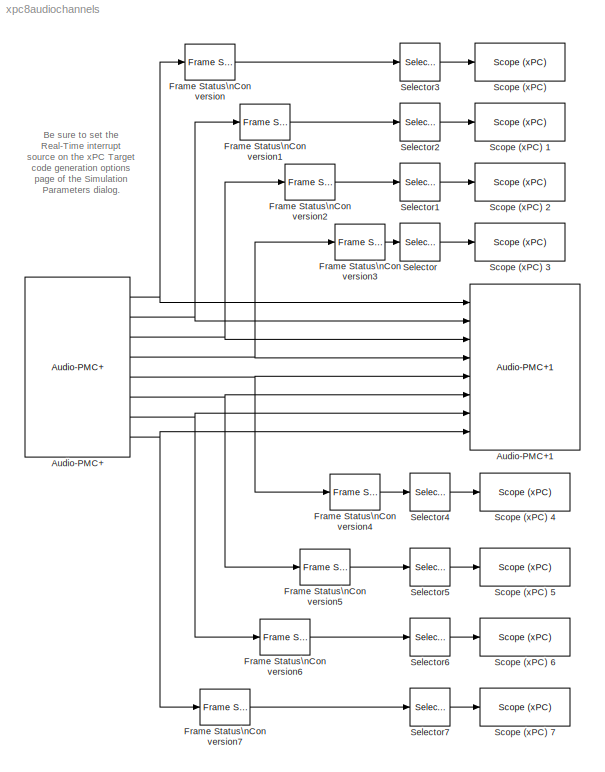
MODEL xpc8audiochannels
KIND model
BLOCK [Reference] Audio-PMC+  REF=xpclib/Audio/Bittware/Audio-PMC+
  Ports = [0, 8]
  SourceBlock = xpclib/Audio/Bittware/Audio-PMC+
  SourceType = bwaudpmc-ain
  channel = [1 2 3 4 5 6 7 8]
  convert = +-1.000
  framesize = 64
  samplerate = 48000
  sampletime = -1
  slot = -1
BLOCK [Reference] Audio-PMC+1  REF=xpclib/Audio/Bittware/Audio-PMC+1
  Ports = [8]
  SourceBlock = xpclib/Audio/Bittware/Audio-PMC+1
  SourceType = bwaudpmc-aout
  channel = [1 2 3 4 5 6 7 8]
  framesize = 64
  samplerate = 48000
  sampletime = -1
  slot = -1
BLOCK [Reference] Frame Status\nConversion  REF=dspsigattribs/Frame Status\nConversion
  Ports = [1, 1]
  ShowPortLabels = off
  SourceBlock = dspsigattribs/Frame Status\nConversion
  SourceType = Frame Status Conversion
  growRefPort = off
  outframe = Sample-based
BLOCK [Reference] Frame Status\nConversion1  REF=dspsigattribs/Frame Status\nConversion
  Ports = [1, 1]
  ShowPortLabels = off
  SourceBlock = dspsigattribs/Frame Status\nConversion
  SourceType = Frame Status Conversion
  growRefPort = off
  outframe = Sample-based
BLOCK [Reference] Frame Status\nConversion2  REF=dspsigattribs/Frame Status\nConversion
  Ports = [1, 1]
  ShowPortLabels = off
  SourceBlock = dspsigattribs/Frame Status\nConversion
  SourceType = Frame Status Conversion
  growRefPort = off
  outframe = Sample-based
BLOCK [Reference] Frame Status\nConversion3  REF=dspsigattribs/Frame Status\nConversion
  Ports = [1, 1]
  ShowPortLabels = off
  SourceBlock = dspsigattribs/Frame Status\nConversion
  SourceType = Frame Status Conversion
  growRefPort = off
  outframe = Sample-based
BLOCK [Reference] Frame Status\nConversion4  REF=dspsigattribs/Frame Status\nConversion
  Ports = [1, 1]
  ShowPortLabels = off
  SourceBlock = dspsigattribs/Frame Status\nConversion
  SourceType = Frame Status Conversion
  growRefPort = off
  outframe = Sample-based
BLOCK [Reference] Frame Status\nConversion5  REF=dspsigattribs/Frame Status\nConversion
  Ports = [1, 1]
  ShowPortLabels = off
  SourceBlock = dspsigattribs/Frame Status\nConversion
  SourceType = Frame Status Conversion
  growRefPort = off
  outframe = Sample-based
BLOCK [Reference] Frame Status\nConversion6  REF=dspsigattribs/Frame Status\nConversion
  Ports = [1, 1]
  ShowPortLabels = off
  SourceBlock = dspsigattribs/Frame Status\nConversion
  SourceType = Frame Status Conversion
  growRefPort = off
  outframe = Sample-based
BLOCK [Reference] Frame Status\nConversion7  REF=dspsigattribs/Frame Status\nConversion
  Ports = [1, 1]
  ShowPortLabels = off
  SourceBlock = dspsigattribs/Frame Status\nConversion
  SourceType = Frame Status Conversion
  growRefPort = off
  outframe = Sample-based
BLOCK [Reference] Scope (xPC)   REF=xpclib/Misc./Scope (xPC) 
  Ports = [1]
  ShowPortLabels = on
  SourceBlock = xpclib/Misc./Scope (xPC)
  SourceType = xpcscopeblock
  autorestart = off
  autostart = on
  filename = data.dat
  formatstr = '%15.6f'
  grid = on
  interleave = 1
  mode = Lazy
  noprepostsamples = 0
  nosamples = 500
  scopeno = 1
  scopetype = Target
  triggerlevel = 0.0
  triggermode = Signal triggering
  triggersample = 0
  triggerscope = 1
  triggersignal = 1
  triggerslope = Rising
  viewmode = Graphical redraw
  writesize = 512
  ylimits = [0,0]
BLOCK [Reference] Scope (xPC) 1  REF=xpclib/Misc./Scope (xPC) 
  Ports = [1]
  ShowPortLabels = on
  SourceBlock = xpclib/Misc./Scope (xPC)
  SourceType = xpcscopeblock
  autorestart = off
  autostart = on
  filename = data.dat
  formatstr = '%15.6f'
  grid = on
  interleave = 1
  mode = Lazy
  noprepostsamples = 0
  nosamples = 500
  scopeno = 2
  scopetype = Target
  triggerlevel = 0.0
  triggermode = Signal triggering
  triggersample = 0
  triggerscope = 1
  triggersignal = 1
  triggerslope = Rising
  viewmode = Graphical redraw
  writesize = 512
  ylimits = [0,0]
BLOCK [Reference] Scope (xPC) 2  REF=xpclib/Misc./Scope (xPC) 
  Ports = [1]
  ShowPortLabels = on
  SourceBlock = xpclib/Misc./Scope (xPC)
  SourceType = xpcscopeblock
  autorestart = off
  autostart = on
  filename = data.dat
  formatstr = '%15.6f'
  grid = on
  interleave = 1
  mode = Lazy
  noprepostsamples = 0
  nosamples = 500
  scopeno = 3
  scopetype = Target
  triggerlevel = 0.0
  triggermode = Signal triggering
  triggersample = 0
  triggerscope = 1
  triggersignal = 1
  triggerslope = Rising
  viewmode = Graphical redraw
  writesize = 512
  ylimits = [0,0]
BLOCK [Reference] Scope (xPC) 3  REF=xpclib/Misc./Scope (xPC) 
  Ports = [1]
  ShowPortLabels = on
  SourceBlock = xpclib/Misc./Scope (xPC)
  SourceType = xpcscopeblock
  autorestart = off
  autostart = on
  filename = data.dat
  formatstr = '%15.6f'
  grid = on
  interleave = 1
  mode = Lazy
  noprepostsamples = 0
  nosamples = 500
  scopeno = 4
  scopetype = Target
  triggerlevel = 0.0
  triggermode = Signal triggering
  triggersample = 0
  triggerscope = 1
  triggersignal = 1
  triggerslope = Rising
  viewmode = Graphical redraw
  writesize = 512
  ylimits = [0,0]
BLOCK [Reference] Scope (xPC) 4  REF=xpclib/Misc./Scope (xPC) 
  Ports = [1]
  ShowPortLabels = on
  SourceBlock = xpclib/Misc./Scope (xPC)
  SourceType = xpcscopeblock
  autorestart = off
  autostart = on
  filename = data.dat
  formatstr = '%15.6f'
  grid = on
  interleave = 1
  mode = Lazy
  noprepostsamples = 0
  nosamples = 500
  scopeno = 5
  scopetype = Target
  triggerlevel = 0.0
  triggermode = Signal triggering
  triggersample = 0
  triggerscope = 1
  triggersignal = 1
  triggerslope = Rising
  viewmode = Graphical redraw
  writesize = 512
  ylimits = [0,0]
BLOCK [Reference] Scope (xPC) 5  REF=xpclib/Misc./Scope (xPC) 
  Ports = [1]
  ShowPortLabels = on
  SourceBlock = xpclib/Misc./Scope (xPC)
  SourceType = xpcscopeblock
  autorestart = off
  autostart = on
  filename = data.dat
  formatstr = '%15.6f'
  grid = on
  interleave = 1
  mode = Lazy
  noprepostsamples = 0
  nosamples = 500
  scopeno = 6
  scopetype = Target
  triggerlevel = 0.0
  triggermode = Signal triggering
  triggersample = 0
  triggerscope = 1
  triggersignal = 1
  triggerslope = Rising
  viewmode = Graphical redraw
  writesize = 512
  ylimits = [0,0]
BLOCK [Reference] Scope (xPC) 6  REF=xpclib/Misc./Scope (xPC) 
  Ports = [1]
  ShowPortLabels = on
  SourceBlock = xpclib/Misc./Scope (xPC)
  SourceType = xpcscopeblock
  autorestart = off
  autostart = on
  filename = data.dat
  formatstr = '%15.6f'
  grid = on
  interleave = 1
  mode = Lazy
  noprepostsamples = 0
  nosamples = 500
  scopeno = 7
  scopetype = Target
  triggerlevel = 0.0
  triggermode = Signal triggering
  triggersample = 0
  triggerscope = 1
  triggersignal = 1
  triggerslope = Rising
  viewmode = Graphical redraw
  writesize = 512
  ylimits = [0,0]
BLOCK [Reference] Scope (xPC) 7  REF=xpclib/Misc./Scope (xPC) 
  Ports = [1]
  ShowPortLabels = on
  SourceBlock = xpclib/Misc./Scope (xPC)
  SourceType = xpcscopeblock
  autorestart = off
  autostart = on
  filename = data.dat
  formatstr = '%15.6f'
  grid = on
  interleave = 1
  mode = Lazy
  noprepostsamples = 0
  nosamples = 500
  scopeno = 8
  scopetype = Target
  triggerlevel = 0.0
  triggermode = Signal triggering
  triggersample = 0
  triggerscope = 1
  triggersignal = 1
  triggerslope = Rising
  viewmode = Graphical redraw
  writesize = 512
  ylimits = [0,0]
BLOCK [Selector] Selector
  Elements = [1]
  Ports = [1, 1]
BLOCK [Selector] Selector1
  Elements = [1]
  Ports = [1, 1]
BLOCK [Selector] Selector2
  Elements = [1]
  Ports = [1, 1]
BLOCK [Selector] Selector3
  Elements = [1]
  Ports = [1, 1]
BLOCK [Selector] Selector4
  Elements = [1]
  Ports = [1, 1]
BLOCK [Selector] Selector5
  Elements = [1]
  Ports = [1, 1]
BLOCK [Selector] Selector6
  Elements = [1]
  Ports = [1, 1]
BLOCK [Selector] Selector7
  Elements = [1]
  Ports = [1, 1]
ANNOTATION (root): Be sure to set the\nReal-Time interrupt\nsource on the xPC Target\ncode generation options\npage of the Simulation\nParameters dialog.
NET Audio-PMC+:1 -> Audio-PMC+1:1, Frame Status\nConversion:1
NET Audio-PMC+:2 -> Audio-PMC+1:2, Frame Status\nConversion1:1
NET Audio-PMC+:3 -> Audio-PMC+1:3, Frame Status\nConversion2:1
NET Audio-PMC+:4 -> Audio-PMC+1:4, Frame Status\nConversion3:1
NET Audio-PMC+:5 -> Audio-PMC+1:5, Frame Status\nConversion4:1
NET Audio-PMC+:6 -> Audio-PMC+1:6, Frame Status\nConversion5:1
NET Audio-PMC+:7 -> Audio-PMC+1:7, Frame Status\nConversion6:1
NET Audio-PMC+:8 -> Audio-PMC+1:8, Frame Status\nConversion7:1
LINE Frame Status\nConversion1:1 -> Selector2:1
LINE Frame Status\nConversion2:1 -> Selector1:1
LINE Frame Status\nConversion3:1 -> Selector:1
LINE Frame Status\nConversion4:1 -> Selector4:1
LINE Frame Status\nConversion5:1 -> Selector5:1
LINE Frame Status\nConversion6:1 -> Selector6:1
LINE Frame Status\nConversion7:1 -> Selector7:1
LINE Frame Status\nConversion:1 -> Selector3:1
LINE Selector1:1 -> Scope (xPC) 2:1
LINE Selector2:1 -> Scope (xPC) 1:1
LINE Selector3:1 -> Scope (xPC) :1
LINE Selector4:1 -> Scope (xPC) 4:1
LINE Selector5:1 -> Scope (xPC) 5:1
LINE Selector6:1 -> Scope (xPC) 6:1
LINE Selector7:1 -> Scope (xPC) 7:1
LINE Selector:1 -> Scope (xPC) 3:1
note: NET lines group one-source signal fan-out (src -> all destinations, sorted); 1:1 wires keep LINE
